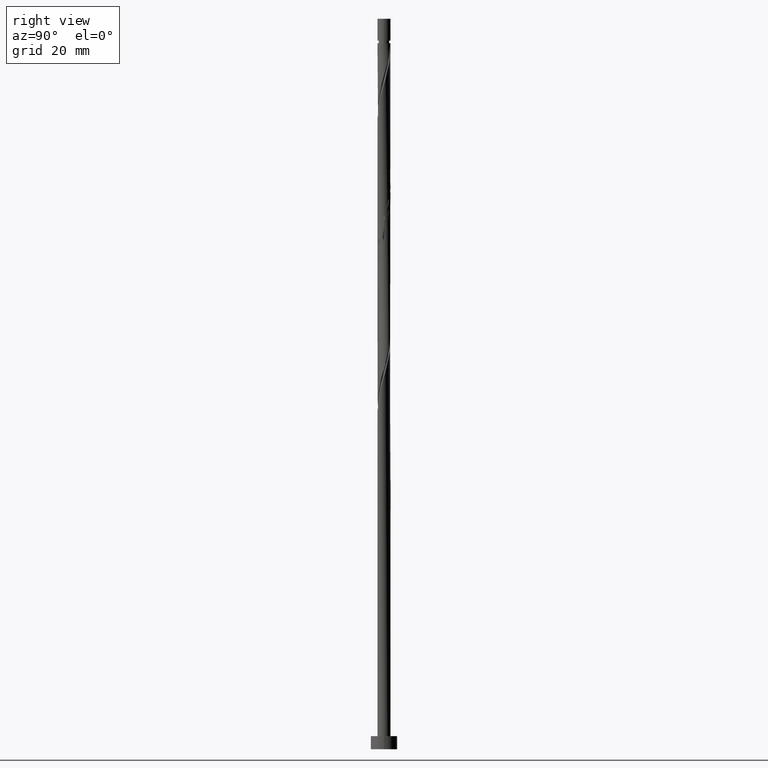
[diagram: clean part render]
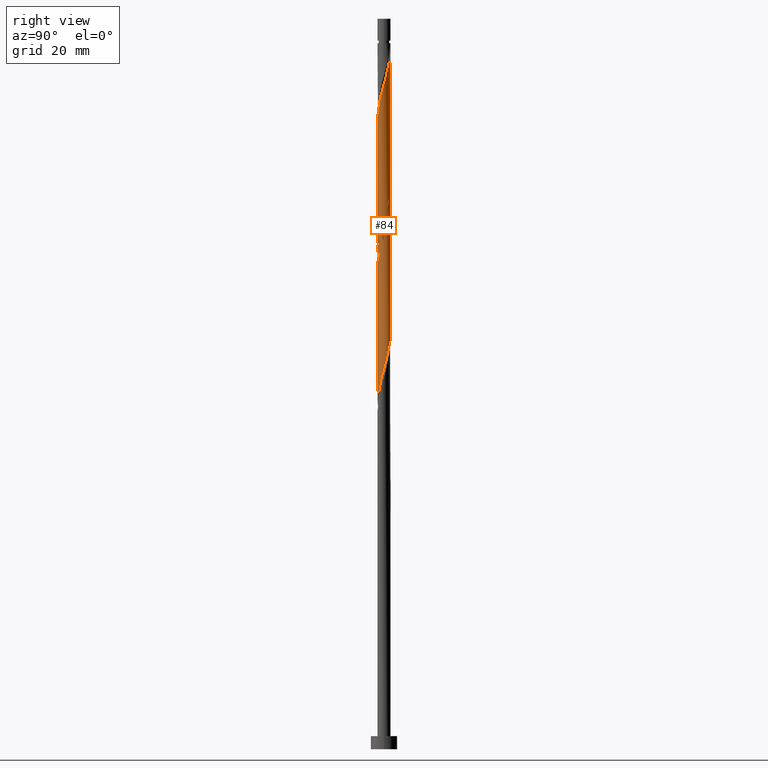
[diagram: same view with one face highlighted and labeled with its STEP entity id]
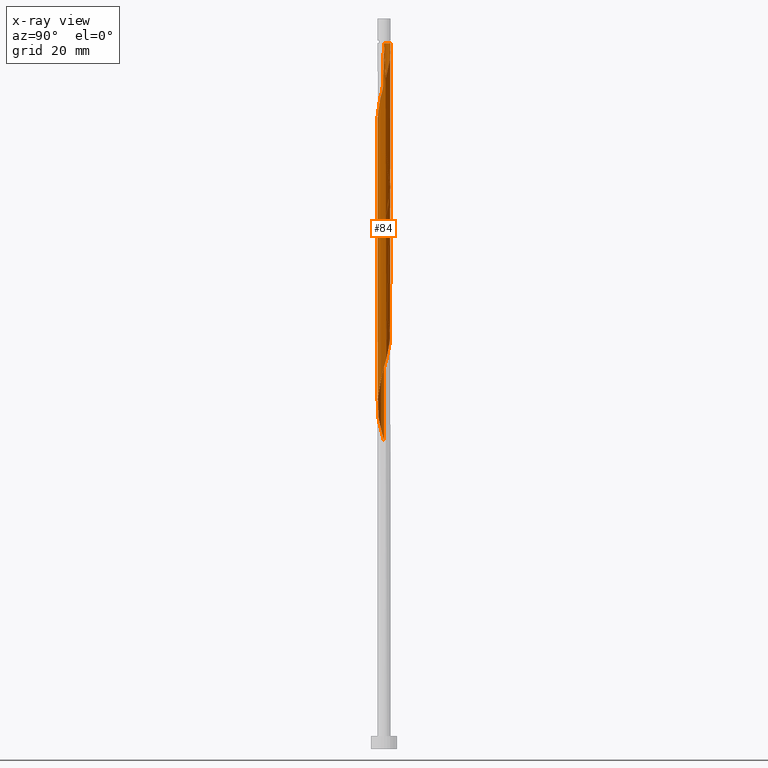
[diagram: x-ray of the same camera — body ghosted, the highlighted face saturated]
A machine part, right view. The second image highlights one B-rep face of the part: STEP entity #84.
The next image is the same camera in x-ray: the body ghosted, the highlighted face saturated — about 0% of this face is hidden behind the body in this view.
In plain terms, the highlighted cylindrical surface (bore or boss wall) has radius 1.5 mm, axis along (-0, -0, -1).
Its self-contained STEP definition (entity closure, byte-faithful):
#4 = CARTESIAN_POINT ( 'NONE',  ( -0.2892446148792527372, -1.485037173957476586, 142.1870603003432336 ) ) ;
#12 = CARTESIAN_POINT ( 'NONE',  ( 0.000000000000000000, 0.000000000000000000, 166.5200000000000102 ) ) ;
#28 =( BOUNDED_CURVE ( )  B_SPLINE_CURVE ( 2, ( #171, #1566, #817, #1329, #1559, #435, #526, #1313, #1048, #1037, #1539, #1447, #187, #408, #662, #688, #1195, #1419, #672, #1071, #1180, #1574, #284, #50, #443, #1170, #781, #1294, #39, #1550, #419, #921, #549, #1057, #99, #1105, #966, #1604, #1469, #974, #328, #1360, #466, #472, #1111, #344, #81, #214, #1228, #222, #1610, #694, #451, #1589, #1337, #596, #980, #579, #337, #1598, #1352, #719, #711, #194, #1088, #357, #1345, #1580, #1476, #231, #479, #202, #846, #1211, #459 ),
 .UNSPECIFIED., .F., .T. ) 
 B_SPLINE_CURVE_WITH_KNOTS ( ( 3, 2, 2, 2, 2, 2, 2, 2, 2, 2, 2, 2, 2, 2, 2, 2, 2, 2, 2, 2, 2, 2, 2, 2, 2, 2, 2, 2, 2, 2, 2, 2, 2, 2, 2, 2, 2, 3 ),
 ( 0.5545317669814462391, 0.5625000000000000000, 0.5729166666666666297, 0.5833333333333333703, 0.5937500000000000000, 0.6041666666666666297, 0.6145833333333333703, 0.6250000000000000000, 0.6354166666666666297, 0.6458333333333333703, 0.6562500000000000000, 0.6666666666666666297, 0.6770833333333333703, 0.6875000000000000000, 0.6979166666666666297, 0.7083333333333333703, 0.7187500000000000000, 0.7291666666666666297, 0.7395833333333333703, 0.7500000000000000000, 0.7604166666666666297, 0.7708333333333333703, 0.7812500000000000000, 0.7916666666666666297, 0.8020833333333333703, 0.8125000000000000000, 0.8229166666666666297, 0.8333333333333333703, 0.8437500000000000000, 0.8541666666666666297, 0.8645833333333333703, 0.8750000000000000000, 0.8854166666666666297, 0.8958333333333333703, 0.9062500000000000000, 0.9166666666666665186, 0.9270833333333332593, 0.9295317669814464612 ),
 .UNSPECIFIED. ) 
 CURVE ( )  GEOMETRIC_REPRESENTATION_ITEM ( )  RATIONAL_B_SPLINE_CURVE ( ( 0.9062941362546493851, 0.9031415850403535783, 0.9090909090909291557, 0.9013135103398474124, 0.9090909090909291557, 0.9013135103398474124, 0.9090909090909291557, 0.9013135103398474124, 0.9090909090909291557, 0.9013135103398474124, 0.9090909090909291557, 0.9013135103398474124, 0.9090909090909291557, 0.9013135103398474124, 0.9090909090909291557, 0.9013135103398474124, 0.9090909090909291557, 0.9013135103398474124, 0.9090909090909291557, 0.9013135103398474124, 0.9090909090909291557, 0.9013135103398474124, 0.9090909090909291557, 0.9013135103398474124, 0.9090909090909291557, 0.9013135103398474124, 0.9090909090909291557, 0.9013135103398474124, 0.9090909090909291557, 0.9013135103398474124, 0.9090909090909291557, 0.9013135103398474124, 0.9090909090909291557, 0.9013135103398474124, 0.9090909090909291557, 0.9013135103398474124, 0.9090909090909291557, 0.9013135103398474124, 0.9090909090909291557, 0.9013135103398474124, 0.9090909090909291557, 0.9013135103398474124, 0.9090909090909291557, 0.9013135103398474124, 0.9090909090909291557, 0.9013135103398474124, 0.9090909090909291557, 0.9013135103398474124, 0.9090909090909291557, 0.9013135103398474124, 0.9090909090909291557, 0.9013135103398474124, 0.9090909090909291557, 0.9013135103398474124, 0.9090909090909291557, 0.9013135103398474124, 0.9090909090909291557, 0.9013135103398474124, 0.9090909090909291557, 0.9013135103398474124, 0.9090909090909291557, 0.9013135103398474124, 0.9090909090909291557, 0.9013135103398474124, 0.9090909090909291557, 0.9013135103398474124, 0.9090909090909291557, 0.9013135103398474124, 0.9090909090909291557, 0.9013135103398474124, 0.9090909090909291557, 0.9013135103398474124, 0.9090909090909291557, 0.9072628343904227677, 0.9062941362546492741 ) ) 
 REPRESENTATION_ITEM ( '' )  );
#39 = CARTESIAN_POINT ( 'NONE',  ( -1.342654455136647940, 0.6687892150010427139, 101.2148380781209909 ) ) ;
#42 = CARTESIAN_POINT ( 'NONE',  ( -0.2984962311320309980, 1.470000000000445395, 160.9370603003432620 ) ) ;
#50 = CARTESIAN_POINT ( 'NONE',  ( -1.485037173957474366, -0.2892446148792515714, 104.6870603003432620 ) ) ;
#66 = CARTESIAN_POINT ( 'NONE',  ( 0.2984962311319869221, 1.469999999999999751, 127.6037269670099192 ) ) ;
#68 = EDGE_LOOP ( 'NONE', ( #951, #156, #447, #1459, #1546, #1233, #707, #599 ) ) ;
#73 = CARTESIAN_POINT ( 'NONE',  ( -1.123809227997131011, 0.9935053190942118029, 133.1592825225654337 ) ) ;
#81 = CARTESIAN_POINT ( 'NONE',  ( 1.422305459129118210, 0.4764946809057871158, 88.71483807812103350 ) ) ;
#84 = ADVANCED_FACE ( 'NONE', ( #1114 ), #1615, .T. ) ;
#99 = CARTESIAN_POINT ( 'NONE',  ( -0.4764946809057878929, 1.422305459129117766, 97.04817141145434789 ) ) ;
#122 = CARTESIAN_POINT ( 'NONE',  ( -1.500000000000001998, -7.925505755118549871E-16, 134.8734936451331805 ) ) ;
#129 = CARTESIAN_POINT ( 'NONE',  ( -0.4764946809057895583, -1.422305459129120209, 141.4926158558987481 ) ) ;
#137 = CARTESIAN_POINT ( 'NONE',  ( -1.254606684622249224, -0.8455530274166269677, 138.0203936336765480 ) ) ;
#145 = CARTESIAN_POINT ( 'NONE',  ( -1.469999999999999751, 0.2984962311319867001, 135.9370603003432336 ) ) ;
#156 = ORIENTED_EDGE ( 'NONE', *, *, #1151, .T. ) ;
#157 = VERTEX_POINT ( 'NONE', #122 ) ;
#171 = CARTESIAN_POINT ( 'NONE',  ( 1.500000000000000222, 1.816884809899830811E-15, 120.3339602888866580 ) ) ;
#176 = EDGE_CURVE ( 'NONE', #157, #1341, #1608, .T. ) ;
#177 = CIRCLE ( 'NONE', #830, 1.499999999999992673 ) ;
#187 = CARTESIAN_POINT ( 'NONE',  ( 0.09213877760036795483, -1.497167474153212385, 112.3259491892321051 ) ) ;
#188 = CARTESIAN_POINT ( 'NONE',  ( -0.4764946809057878929, 1.422305459129117766, 130.3815047447876623 ) ) ;
#190 = VERTEX_POINT ( 'NONE', #1532 ) ;
#194 = CARTESIAN_POINT ( 'NONE',  ( -0.4920254025854591262, -1.430702225651049320, 76.90928252256546216 ) ) ;
#195 = CARTESIAN_POINT ( 'NONE',  ( -0.2892446148792520155, 1.485037173957474366, 129.6870603003432620 ) ) ;
#202 = CARTESIAN_POINT ( 'NONE',  ( -1.485037173957474366, -0.2892446148792515714, 71.35372696700990502 ) ) ;
#206 = CARTESIAN_POINT ( 'NONE',  ( 1.500000000000000222, 1.836970198721030181E-16, 160.9370603003432620 ) ) ;
#214 = CARTESIAN_POINT ( 'NONE',  ( 1.485037173957474810, 0.2892446148792510163, 88.02039363367659064 ) ) ;
#222 = CARTESIAN_POINT ( 'NONE',  ( 1.509297774348951071, -0.1049670596785152732, 86.63150474478771912 ) ) ;
#231 = CARTESIAN_POINT ( 'NONE',  ( -1.359573744300762055, -0.6637447469323236593, 72.74261585589879076 ) ) ;
#234 = DIRECTION ( 'NONE',  ( -0.000000000000000000, -0.000000000000000000, -1.000000000000000000 ) ) ;
#239 = CARTESIAN_POINT ( 'NONE',  ( -0.6637447469323257687, -1.359573744300763609, 140.7981714114543479 ) ) ;
#253 = CARTESIAN_POINT ( 'NONE',  ( -1.430702225651051984, -0.4920254025854586821, 136.6315047447877191 ) ) ;
#257 = CARTESIAN_POINT ( 'NONE',  ( -1.499999999999999778, -6.056282699666100402E-16, 137.0006269555533152 ) ) ;
#261 = CARTESIAN_POINT ( 'NONE',  ( 1.254606684622249446, 0.8455530274166264126, 154.6870603003432336 ) ) ;
#284 = CARTESIAN_POINT ( 'NONE',  ( -1.422305459129117766, -0.4764946809057877264, 105.3815047447876623 ) ) ;
#289 = CARTESIAN_POINT ( 'NONE',  ( -0.2984962311320309980, 1.470000000000445395, 160.9370603003432620 ) ) ;
#314 = CARTESIAN_POINT ( 'NONE',  ( 0.4920254025854600699, 1.430702225651048876, 126.9092825225654764 ) ) ;
#320 = CARTESIAN_POINT ( 'NONE',  ( 1.485037173957474810, 0.2892446148792510163, 121.3537269670099192 ) ) ;
#324 = EDGE_CURVE ( 'NONE', #847, #1032, #1046, .T. ) ;
#328 = CARTESIAN_POINT ( 'NONE',  ( 0.6687892150010434911, 1.342654455136647496, 92.88150474478766228 ) ) ;
#329 = CARTESIAN_POINT ( 'NONE',  ( 1.422305459129118210, 0.4764946809057871158, 122.0481714114543479 ) ) ;
#333 = VECTOR ( 'NONE', #1493, 1000.000000000000000 ) ;
#337 = CARTESIAN_POINT ( 'NONE',  ( 0.4764946809057876154, -1.422305459129118210, 80.38150474478766228 ) ) ;
#344 = CARTESIAN_POINT ( 'NONE',  ( 1.359573744300762499, 0.6637447469323227711, 89.40928252256547637 ) ) ;
#357 = CARTESIAN_POINT ( 'NONE',  ( -0.8455530274166267457, -1.254606684622247226, 75.52039363367659064 ) ) ;
#366 = VERTEX_POINT ( 'NONE', #206 ) ;
#374 = CARTESIAN_POINT ( 'NONE',  ( 0.4920254025854585711, -1.430702225651051984, 144.9648380781210051 ) ) ;
#385 = CARTESIAN_POINT ( 'NONE',  ( 1.497167474153214606, -0.09213877760037010589, 151.2148380781210335 ) ) ;
#408 = CARTESIAN_POINT ( 'NONE',  ( -0.1049670596785151483, -1.509297774348951071, 111.6315047447876765 ) ) ;
#412 = CARTESIAN_POINT ( 'NONE',  ( -0.1049670596785173549, 1.509297774348953070, 160.2426158558988334 ) ) ;
#419 = CARTESIAN_POINT ( 'NONE',  ( -1.123809227997131011, 0.9935053190942118029, 99.82594918923213356 ) ) ;
#435 = CARTESIAN_POINT ( 'NONE',  ( 1.254606684622246782, -0.8455530274166273008, 117.1870603003432336 ) ) ;
#443 = CARTESIAN_POINT ( 'NONE',  ( -1.497167474153212829, -0.09213877760036837117, 103.9926158558987623 ) ) ;
#447 = ORIENTED_EDGE ( 'NONE', *, *, #176, .F. ) ;
#449 = CARTESIAN_POINT ( 'NONE',  ( -1.500000000000000222, 0.000000000000000000, 166.5200000000000102 ) ) ;
#451 = CARTESIAN_POINT ( 'NONE',  ( 1.342654455136647496, -0.6687892150010434911, 84.54817141145434789 ) ) ;
#452 = CARTESIAN_POINT ( 'NONE',  ( 1.500000000000000222, 0.04611292748651037859, 120.4971239769148070 ) ) ;
#459 = CARTESIAN_POINT ( 'NONE',  ( -1.500000000000000444, 1.988853331001461045E-15, 70.33396028888662954 ) ) ;
#466 = CARTESIAN_POINT ( 'NONE',  ( 0.9935053190942123580, 1.123809227997130566, 91.49261585589877654 ) ) ;
#472 = CARTESIAN_POINT ( 'NONE',  ( 1.141457610771798414, 0.9930117713720155725, 90.79817141145437631 ) ) ;
#479 = CARTESIAN_POINT ( 'NONE',  ( -1.422305459129117766, -0.4764946809057877264, 72.04817141145436210 ) ) ;
#482 = CARTESIAN_POINT ( 'NONE',  ( -0.9930117713720179040, -1.141457610771797970, 139.4092825225654622 ) ) ;
#488 = CARTESIAN_POINT ( 'NONE',  ( 1.123809227997134119, 0.9935053190942122470, 155.3815047447876907 ) ) ;
#489 = DIRECTION ( 'NONE',  ( -1.000000000000000000, 0.000000000000000000, 0.000000000000000000 ) ) ;
#504 = CARTESIAN_POINT ( 'NONE',  ( 0.9935053190942126911, -1.123809227997133231, 147.0481714114543195 ) ) ;
#513 = DIRECTION ( 'NONE',  ( -1.000000000000000000, 0.000000000000000000, 0.000000000000000000 ) ) ;
#514 = LINE ( 'NONE', #1030, #988 ) ;
#526 = CARTESIAN_POINT ( 'NONE',  ( 1.123809227997131011, -0.9935053190942123580, 116.4926158558987765 ) ) ;
#543 = EDGE_CURVE ( 'NONE', #1032, #190, #28, .T. ) ;
#549 = CARTESIAN_POINT ( 'NONE',  ( -0.8283782591521700045, 1.250515677536279568, 98.43706030034324783 ) ) ;
#564 = CARTESIAN_POINT ( 'NONE',  ( 1.359573744300762499, 0.6637447469323227711, 122.7426158558988050 ) ) ;
#572 = CARTESIAN_POINT ( 'NONE',  ( -0.6637447469323243254, 1.359573744300762055, 131.0759491892321194 ) ) ;
#579 = CARTESIAN_POINT ( 'NONE',  ( 0.6637447469323236593, -1.359573744300762055, 81.07594918923211935 ) ) ;
#586 = CARTESIAN_POINT ( 'NONE',  ( 0.000000000000000000, 0.000000000000000000, 160.9370603003432336 ) ) ;
#596 = CARTESIAN_POINT ( 'NONE',  ( 0.9930117713720155725, -1.141457610771797970, 82.46483807812103350 ) ) ;
#599 = ORIENTED_EDGE ( 'NONE', *, *, #324, .F. ) ;
#613 = CARTESIAN_POINT ( 'NONE',  ( -0.8283782591521715588, -1.250515677536281345, 140.1037269670098908 ) ) ;
#614 = DIRECTION ( 'NONE',  ( -0.000000000000000000, -0.000000000000000000, -1.000000000000000000 ) ) ;
#627 = CARTESIAN_POINT ( 'NONE',  ( 0.8455530274166266347, -1.254606684622249446, 146.3537269670098908 ) ) ;
#630 = LINE ( 'NONE', #997, #333 ) ;
#662 = CARTESIAN_POINT ( 'NONE',  ( -0.2984962311319867556, -1.469999999999999751, 110.9370603003432194 ) ) ;
#672 = CARTESIAN_POINT ( 'NONE',  ( -0.9935053190942122470, -1.123809227997131011, 108.1592825225654195 ) ) ;
#688 = CARTESIAN_POINT ( 'NONE',  ( -0.4920254025854591262, -1.430702225651049320, 110.2426158558988192 ) ) ;
#689 = CARTESIAN_POINT ( 'NONE',  ( 0.8455530274166274118, 1.254606684622246560, 125.5203936336765906 ) ) ;
#694 = CARTESIAN_POINT ( 'NONE',  ( 1.430702225651048876, -0.4920254025854598479, 85.24261585589881918 ) ) ;
#707 = ORIENTED_EDGE ( 'NONE', *, *, #1614, .T. ) ;
#711 = CARTESIAN_POINT ( 'NONE',  ( -0.2984962311319867556, -1.469999999999999751, 77.60372696700990502 ) ) ;
#719 = CARTESIAN_POINT ( 'NONE',  ( -0.1049670596785151483, -1.509297774348951071, 78.29817141145439052 ) ) ;
#735 = CARTESIAN_POINT ( 'NONE',  ( -1.500000000000000222, -0.1507556722888906686, 135.4069200143224805 ) ) ;
#740 = CARTESIAN_POINT ( 'NONE',  ( 1.359573744300763387, -0.6637447469323257687, 149.1315047447876623 ) ) ;
#748 = CARTESIAN_POINT ( 'NONE',  ( -1.342654455136651048, -0.6687892150010428249, 137.3259491892320909 ) ) ;
#764 = CARTESIAN_POINT ( 'NONE',  ( -1.500000000000000888, 0.1507556722888799550, 136.4672005863640152 ) ) ;
#781 = CARTESIAN_POINT ( 'NONE',  ( -1.469999999999999751, 0.2984962311319867001, 102.6037269670098624 ) ) ;
#785 = CARTESIAN_POINT ( 'NONE',  ( -1.342654455136647940, 0.6687892150010427139, 134.5481714114543763 ) ) ;
#806 = CARTESIAN_POINT ( 'NONE',  ( 0.2892446148792534588, 1.485037173957476586, 158.8537269670098624 ) ) ;
#812 = CARTESIAN_POINT ( 'NONE',  ( 0.9935053190942123580, 1.123809227997130566, 124.8259491892320909 ) ) ;
#817 = CARTESIAN_POINT ( 'NONE',  ( 1.469999999999999751, -0.2984962311319868666, 119.2703936336765622 ) ) ;
#830 = AXIS2_PLACEMENT_3D ( 'NONE', #586, #1586, #489 ) ;
#846 = CARTESIAN_POINT ( 'NONE',  ( -1.497167474153212829, -0.09213877760036837117, 70.65928252256543374 ) ) ;
#847 = VERTEX_POINT ( 'NONE', #257 ) ;
#887 = CARTESIAN_POINT ( 'NONE',  ( 1.509297774348952625, 0.1049670596785132887, 151.9092825225654622 ) ) ;
#895 = CARTESIAN_POINT ( 'NONE',  ( -1.499999999999999778, -6.056282699666100402E-16, 137.0006269555533152 ) ) ;
#921 = CARTESIAN_POINT ( 'NONE',  ( -0.9930117713720160166, 1.141457610771797970, 99.13150474478771912 ) ) ;
#946 = CARTESIAN_POINT ( 'NONE',  ( 1.500000000000000222, 1.816884809899830811E-15, 120.3339602888866580 ) ) ;
#949 = CARTESIAN_POINT ( 'NONE',  ( -0.09213877760036853770, 1.497167474153212829, 128.9926158558988050 ) ) ;
#951 = ORIENTED_EDGE ( 'NONE', *, *, #1328, .F. ) ;
#957 = CARTESIAN_POINT ( 'NONE',  ( 1.250515677536279568, 0.8283782591521695604, 123.4370603003432052 ) ) ;
#966 = CARTESIAN_POINT ( 'NONE',  ( -0.09213877760036853770, 1.497167474153212829, 95.65928252256546216 ) ) ;
#974 = CARTESIAN_POINT ( 'NONE',  ( 0.4920254025854600699, 1.430702225651048876, 93.57594918923216198 ) ) ;
#980 = CARTESIAN_POINT ( 'NONE',  ( 0.8283782591521692273, -1.250515677536279791, 81.77039363367657643 ) ) ;
#988 = VECTOR ( 'NONE', #1280, 1000.000000000000000 ) ;
#989 = CARTESIAN_POINT ( 'NONE',  ( 1.470000000000001972, 0.2984962311319865891, 152.6037269670099192 ) ) ;
#995 = CARTESIAN_POINT ( 'NONE',  ( 0.1049670596785140797, -1.509297774348952625, 143.5759491892320909 ) ) ;
#997 = CARTESIAN_POINT ( 'NONE',  ( 1.500000000000000222, 1.836970198721030181E-16, 166.5200000000000102 ) ) ;
#1002 = CARTESIAN_POINT ( 'NONE',  ( -1.500000000000001998, -7.925505755118549871E-16, 134.8734936451331805 ) ) ;
#1012 = CARTESIAN_POINT ( 'NONE',  ( 1.141457610771797970, -0.9930117713720179040, 147.7426158558987197 ) ) ;
#1021 = CARTESIAN_POINT ( 'NONE',  ( 1.485037173957476586, -0.2892446148792533478, 150.5203936336765480 ) ) ;
#1030 = CARTESIAN_POINT ( 'NONE',  ( -1.500000000000000222, 0.000000000000000000, 166.5200000000000102 ) ) ;
#1032 = VERTEX_POINT ( 'NONE', #946 ) ;
#1037 = CARTESIAN_POINT ( 'NONE',  ( 0.6637447469323236593, -1.359573744300762055, 114.4092825225654764 ) ) ;
#1046 =( BOUNDED_CURVE ( )  B_SPLINE_CURVE ( 2, ( #895, #764, #145, #1288, #785, #1078, #73, #1196, #1569, #572, #188, #195, #949, #1581, #66, #314, #1460, #689, #812, #1330, #957, #564, #329, #320, #1453, #452, #1205 ),
 .UNSPECIFIED., .F., .T. ) 
 B_SPLINE_CURVE_WITH_KNOTS ( ( 3, 2, 2, 2, 2, 2, 2, 2, 2, 2, 2, 2, 2, 3 ),
 ( 0.4295317669814461281, 0.4375000000000000000, 0.4479166666666666852, 0.4583333333333333148, 0.4687500000000000000, 0.4791666666666666852, 0.4895833333333333148, 0.5000000000000000000, 0.5104166666666666297, 0.5208333333333333703, 0.5312500000000000000, 0.5416666666666666297, 0.5520833333333333703, 0.5545317669814462391 ),
 .UNSPECIFIED. ) 
 CURVE ( )  GEOMETRIC_REPRESENTATION_ITEM ( )  RATIONAL_B_SPLINE_CURVE ( ( 0.9062941362546496071, 0.9031415850403535783, 0.9090909090909291557, 0.9013135103398474124, 0.9090909090909291557, 0.9013135103398474124, 0.9090909090909291557, 0.9013135103398474124, 0.9090909090909291557, 0.9013135103398474124, 0.9090909090909291557, 0.9013135103398474124, 0.9090909090909291557, 0.9013135103398474124, 0.9090909090909291557, 0.9013135103398474124, 0.9090909090909291557, 0.9013135103398474124, 0.9090909090909291557, 0.9013135103398474124, 0.9090909090909291557, 0.9013135103398474124, 0.9090909090909291557, 0.9013135103398474124, 0.9090909090909291557, 0.9072628343904228787, 0.9062941362546493851 ) ) 
 REPRESENTATION_ITEM ( '' )  );
#1048 = CARTESIAN_POINT ( 'NONE',  ( 0.8283782591521692273, -1.250515677536279791, 115.1037269670098766 ) ) ;
#1057 = CARTESIAN_POINT ( 'NONE',  ( -0.6637447469323243254, 1.359573744300762055, 97.74261585589881918 ) ) ;
#1070 = VECTOR ( 'NONE', #614, 1000.000000000000000 ) ;
#1071 = CARTESIAN_POINT ( 'NONE',  ( -1.141457610771797970, -0.9930117713720157946, 107.4648380781210335 ) ) ;
#1078 = CARTESIAN_POINT ( 'NONE',  ( -1.254606684622247226, 0.8455530274166267457, 133.8537269670099192 ) ) ;
#1088 = CARTESIAN_POINT ( 'NONE',  ( -0.6687892150010429360, -1.342654455136647940, 76.21483807812101929 ) ) ;
#1105 = CARTESIAN_POINT ( 'NONE',  ( -0.2892446148792520155, 1.485037173957474366, 96.35372696700991924 ) ) ;
#1111 = CARTESIAN_POINT ( 'NONE',  ( 1.250515677536279568, 0.8283782591521695604, 90.10372696700991924 ) ) ;
#1114 = FACE_OUTER_BOUND ( 'NONE', #68, .T. ) ;
#1120 = CARTESIAN_POINT ( 'NONE',  ( 1.422305459129120209, -0.4764946809057896693, 149.8259491892322046 ) ) ;
#1127 = CARTESIAN_POINT ( 'NONE',  ( 0.2984962311319867556, -1.470000000000001972, 144.2703936336765480 ) ) ;
#1128 = LINE ( 'NONE', #449, #1070 ) ;
#1151 = EDGE_CURVE ( 'NONE', #1157, #1341, #177, .T. ) ;
#1157 = VERTEX_POINT ( 'NONE', #1578 ) ;
#1170 = CARTESIAN_POINT ( 'NONE',  ( -1.509297774348951071, 0.1049670596785151067, 103.2981714114543621 ) ) ;
#1180 = CARTESIAN_POINT ( 'NONE',  ( -1.250515677536279568, -0.8283782591521697825, 106.7703936336765338 ) ) ;
#1195 = CARTESIAN_POINT ( 'NONE',  ( -0.6687892150010429360, -1.342654455136647940, 109.5481714114543195 ) ) ;
#1196 = CARTESIAN_POINT ( 'NONE',  ( -0.9930117713720160166, 1.141457610771797970, 132.4648380781210335 ) ) ;
#1205 = CARTESIAN_POINT ( 'NONE',  ( 1.500000000000000222, 1.816884809899830811E-15, 120.3339602888866580 ) ) ;
#1211 = CARTESIAN_POINT ( 'NONE',  ( -1.500000000000000444, -0.04611292748650662465, 70.49712397691476440 ) ) ;
#1220 = AXIS2_PLACEMENT_3D ( 'NONE', #12, #234, #513 ) ;
#1228 = CARTESIAN_POINT ( 'NONE',  ( 1.497167474153212385, 0.09213877760036784381, 87.32594918923213356 ) ) ;
#1233 = ORIENTED_EDGE ( 'NONE', *, *, #1614, .F. ) ;
#1239 = CARTESIAN_POINT ( 'NONE',  ( -1.123809227997133009, -0.9935053190942128021, 138.7148380781210335 ) ) ;
#1245 = CARTESIAN_POINT ( 'NONE',  ( -0.09213877760036934261, -1.497167474153214606, 142.8815047447877191 ) ) ;
#1249 = EDGE_CURVE ( 'NONE', #157, #190, #1128, .T. ) ;
#1253 = CARTESIAN_POINT ( 'NONE',  ( 0.9930117713720185701, 1.141457610771797526, 156.0759491892321194 ) ) ;
#1269 = CARTESIAN_POINT ( 'NONE',  ( 0.8283782591521716698, 1.250515677536281123, 156.7703936336766048 ) ) ;
#1280 = DIRECTION ( 'NONE',  ( -0.000000000000000000, -0.000000000000000000, -1.000000000000000000 ) ) ;
#1288 = CARTESIAN_POINT ( 'NONE',  ( -1.430702225651049320, 0.4920254025854586821, 135.2426158558988334 ) ) ;
#1294 = CARTESIAN_POINT ( 'NONE',  ( -1.430702225651049320, 0.4920254025854586821, 101.9092825225654195 ) ) ;
#1313 = CARTESIAN_POINT ( 'NONE',  ( 0.9930117713720155725, -1.141457610771797970, 115.7981714114543621 ) ) ;
#1328 = EDGE_CURVE ( 'NONE', #1157, #847, #514, .T. ) ;
#1329 = CARTESIAN_POINT ( 'NONE',  ( 1.430702225651048876, -0.4920254025854598479, 118.5759491892321762 ) ) ;
#1330 = CARTESIAN_POINT ( 'NONE',  ( 1.141457610771798414, 0.9930117713720155725, 124.1315047447876765 ) ) ;
#1337 = CARTESIAN_POINT ( 'NONE',  ( 1.123809227997131011, -0.9935053190942123580, 83.15928252256546216 ) ) ;
#1341 = VERTEX_POINT ( 'NONE', #289 ) ;
#1345 = CARTESIAN_POINT ( 'NONE',  ( -0.9935053190942122470, -1.123809227997131011, 74.82594918923213356 ) ) ;
#1352 = CARTESIAN_POINT ( 'NONE',  ( 0.09213877760036795483, -1.497167474153212385, 78.99261585589879076 ) ) ;
#1360 = CARTESIAN_POINT ( 'NONE',  ( 0.8455530274166274118, 1.254606684622246560, 92.18706030034327625 ) ) ;
#1377 = CARTESIAN_POINT ( 'NONE',  ( -1.470000000000001972, -0.2984962311319868666, 135.9370603003432620 ) ) ;
#1396 = CARTESIAN_POINT ( 'NONE',  ( 1.342654455136651048, 0.6687892150010423808, 153.9926158558988334 ) ) ;
#1405 = CARTESIAN_POINT ( 'NONE',  ( 0.09213877760037017528, 1.497167474153214606, 159.5481714114543195 ) ) ;
#1419 = CARTESIAN_POINT ( 'NONE',  ( -0.8455530274166267457, -1.254606684622247226, 108.8537269670099192 ) ) ;
#1447 = CARTESIAN_POINT ( 'NONE',  ( 0.2892446148792511829, -1.485037173957474810, 113.0203936336766048 ) ) ;
#1453 = CARTESIAN_POINT ( 'NONE',  ( 1.497167474153212385, 0.09213877760036784381, 120.6592825225654764 ) ) ;
#1459 = ORIENTED_EDGE ( 'NONE', *, *, #1249, .T. ) ;
#1460 = CARTESIAN_POINT ( 'NONE',  ( 0.6687892150010434911, 1.342654455136647496, 126.2148380781209767 ) ) ;
#1469 = CARTESIAN_POINT ( 'NONE',  ( 0.2984962311319869221, 1.469999999999999751, 94.27039363367657643 ) ) ;
#1476 = CARTESIAN_POINT ( 'NONE',  ( -1.250515677536279568, -0.8283782591521697825, 73.43706030034321941 ) ) ;
#1493 = DIRECTION ( 'NONE',  ( -0.000000000000000000, -0.000000000000000000, -1.000000000000000000 ) ) ;
#1498 = CARTESIAN_POINT ( 'NONE',  ( 0.4764946809057896693, 1.422305459129119765, 158.1592825225654337 ) ) ;
#1505 = CARTESIAN_POINT ( 'NONE',  ( 0.6687892150010424919, -1.342654455136651048, 145.6592825225654906 ) ) ;
#1515 = CARTESIAN_POINT ( 'NONE',  ( 1.250515677536280457, -0.8283782591521721139, 148.4370603003432052 ) ) ;
#1525 = CARTESIAN_POINT ( 'NONE',  ( 0.6637447469323261018, 1.359573744300763387, 157.4648380781210051 ) ) ;
#1532 = CARTESIAN_POINT ( 'NONE',  ( -1.500000000000000444, 1.988853331001461045E-15, 70.33396028888662954 ) ) ;
#1539 = CARTESIAN_POINT ( 'NONE',  ( 0.4764946809057876154, -1.422305459129118210, 113.7148380781209909 ) ) ;
#1546 = ORIENTED_EDGE ( 'NONE', *, *, #543, .F. ) ;
#1550 = CARTESIAN_POINT ( 'NONE',  ( -1.254606684622247226, 0.8455530274166267457, 100.5203936336765622 ) ) ;
#1559 = CARTESIAN_POINT ( 'NONE',  ( 1.342654455136647496, -0.6687892150010434911, 117.8815047447876765 ) ) ;
#1566 = CARTESIAN_POINT ( 'NONE',  ( 1.500000000000000222, -0.1507556722888814260, 119.8005339196973864 ) ) ;
#1569 = CARTESIAN_POINT ( 'NONE',  ( -0.8283782591521700045, 1.250515677536279568, 131.7703936336765764 ) ) ;
#1574 = CARTESIAN_POINT ( 'NONE',  ( -1.359573744300762055, -0.6637447469323236593, 106.0759491892321762 ) ) ;
#1578 = CARTESIAN_POINT ( 'NONE',  ( -1.499999999999992673, 0.000000000000000000, 160.9370603003432336 ) ) ;
#1580 = CARTESIAN_POINT ( 'NONE',  ( -1.141457610771797970, -0.9930117713720157946, 74.13150474478770491 ) ) ;
#1581 = CARTESIAN_POINT ( 'NONE',  ( 0.1049670596785147597, 1.509297774348950849, 128.2981714114543479 ) ) ;
#1586 = DIRECTION ( 'NONE',  ( -0.000000000000000000, -0.000000000000000000, -1.000000000000000000 ) ) ;
#1589 = CARTESIAN_POINT ( 'NONE',  ( 1.254606684622246782, -0.8455530274166273008, 83.85372696700993345 ) ) ;
#1598 = CARTESIAN_POINT ( 'NONE',  ( 0.2892446148792511829, -1.485037173957474810, 79.68706030034323362 ) ) ;
#1604 = CARTESIAN_POINT ( 'NONE',  ( 0.1049670596785147597, 1.509297774348950849, 94.96483807812100508 ) ) ;
#1608 =( BOUNDED_CURVE ( )  B_SPLINE_CURVE ( 2, ( #1002, #735, #1377, #253, #748, #137, #1239, #482, #613, #239, #129, #4, #1245, #995, #1127, #374, #1505, #627, #504, #1012, #1515, #740, #1120, #1021, #385, #887, #989, #1621, #1396, #261, #488, #1253, #1269, #1525, #1498, #806, #1405, #412, #42 ),
 .UNSPECIFIED., .F., .T. ) 
 B_SPLINE_CURVE_WITH_KNOTS ( ( 3, 2, 2, 2, 2, 2, 2, 2, 2, 2, 2, 2, 2, 2, 2, 2, 2, 2, 2, 3 ),
 ( 0.5545317669814466832, 0.5625000000000000000, 0.5729166666666667407, 0.5833333333333332593, 0.5937500000000000000, 0.6041666666666667407, 0.6145833333333333703, 0.6250000000000001110, 0.6354166666666668517, 0.6458333333333333703, 0.6562500000000001110, 0.6666666666666668517, 0.6770833333333333703, 0.6875000000000002220, 0.6979166666666669627, 0.7083333333333334814, 0.7187500000000002220, 0.7291666666666669627, 0.7395833333333334814, 0.7500000000000002220 ),
 .UNSPECIFIED. ) 
 CURVE ( )  GEOMETRIC_REPRESENTATION_ITEM ( )  RATIONAL_B_SPLINE_CURVE ( ( 0.9062941362546548252, 0.9031415850403597956, 0.9090909090909349288, 0.9013135103398532966, 0.9090909090909349288, 0.9013135103398532966, 0.9090909090909349288, 0.9013135103398532966, 0.9090909090909349288, 0.9013135103398532966, 0.9090909090909349288, 0.9013135103398532966, 0.9090909090909349288, 0.9013135103398532966, 0.9090909090909349288, 0.9013135103398532966, 0.9090909090909349288, 0.9013135103398532966, 0.9090909090909349288, 0.9013135103398532966, 0.9090909090909349288, 0.9013135103398532966, 0.9090909090909349288, 0.9013135103398532966, 0.9090909090909349288, 0.9013135103398532966, 0.9090909090909349288, 0.9013135103398532966, 0.9090909090909349288, 0.9013135103398532966, 0.9090909090909349288, 0.9013135103398532966, 0.9090909090909349288, 0.9013135103398532966, 0.9090909090909349288, 0.9013135103398532966, 0.9090909090909349288, 0.9013135103398530745, 0.9090909090909351509 ) ) 
 REPRESENTATION_ITEM ( '' )  );
#1610 = CARTESIAN_POINT ( 'NONE',  ( 1.469999999999999751, -0.2984962311319868666, 85.93706030034324783 ) ) ;
#1614 = EDGE_CURVE ( 'NONE', #366, #1032, #630, .T. ) ;
#1615 = CYLINDRICAL_SURFACE ( 'NONE', #1220, 1.500000000000000222 ) ;
#1621 = CARTESIAN_POINT ( 'NONE',  ( 1.430702225651051984, 0.4920254025854585711, 153.2981714114543195 ) ) ;